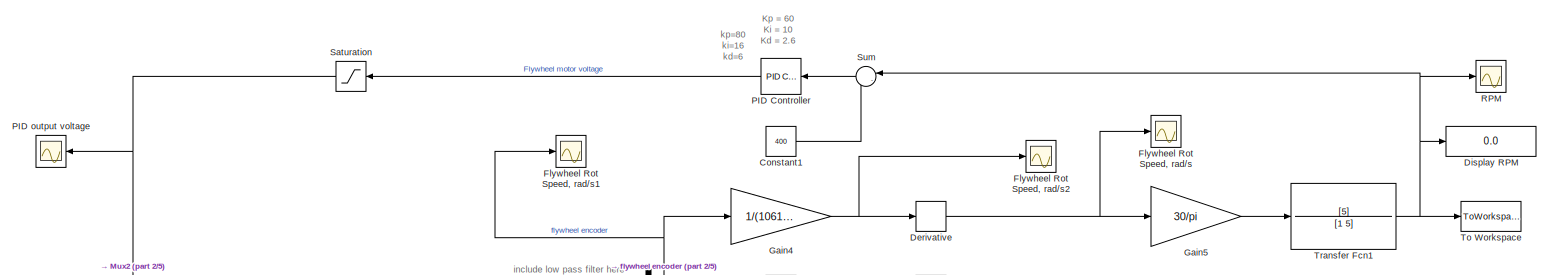
[diagram: root canvas - part 1/5, full width, top band]
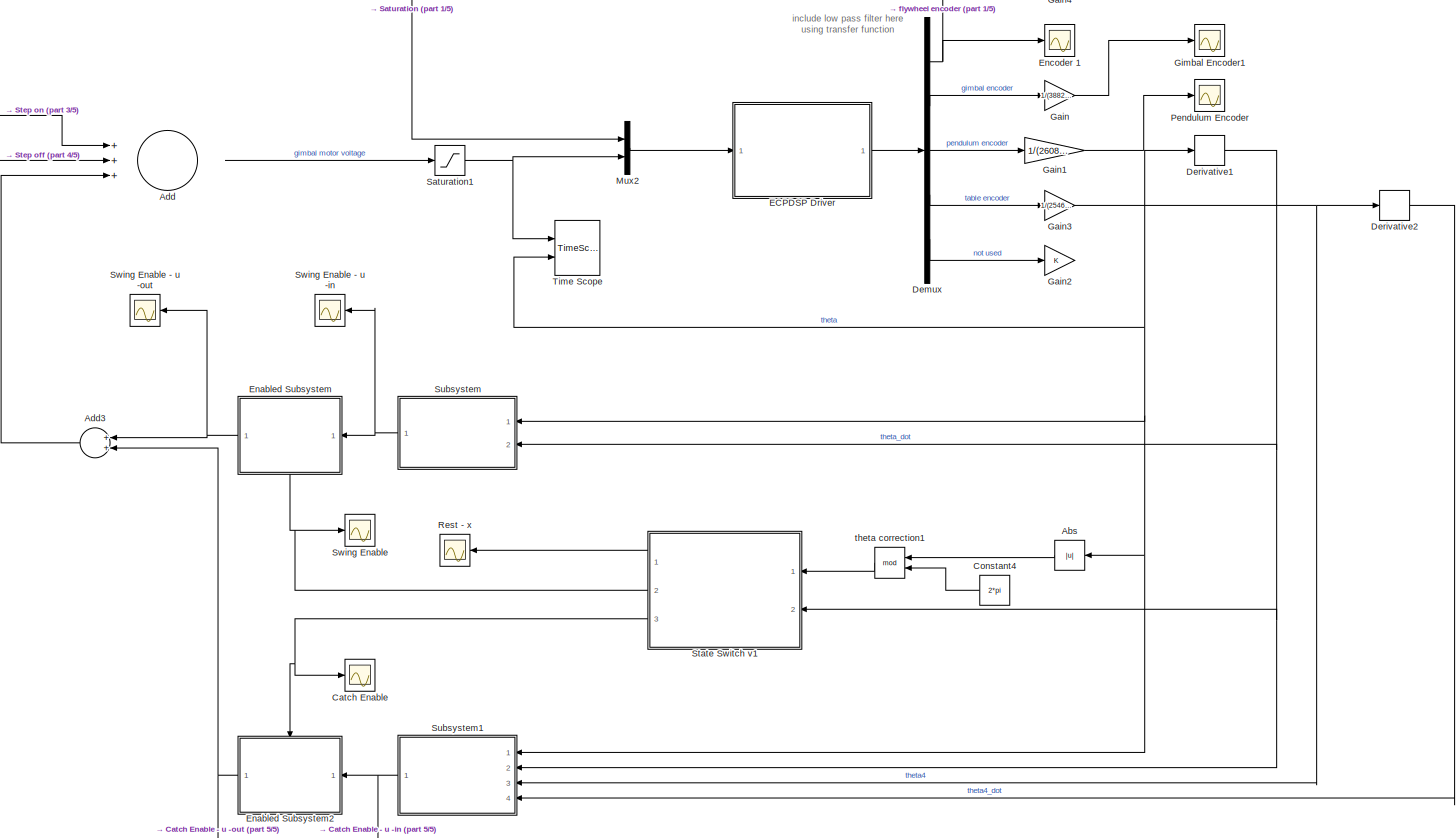
[diagram: root canvas - part 2/5, full width, middle band]
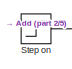
[diagram: root canvas - part 3/5, top left region]
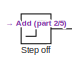
[diagram: root canvas - part 4/5, middle left region]
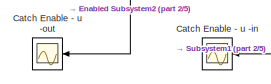
[diagram: root canvas - part 5/5, bottom left region]
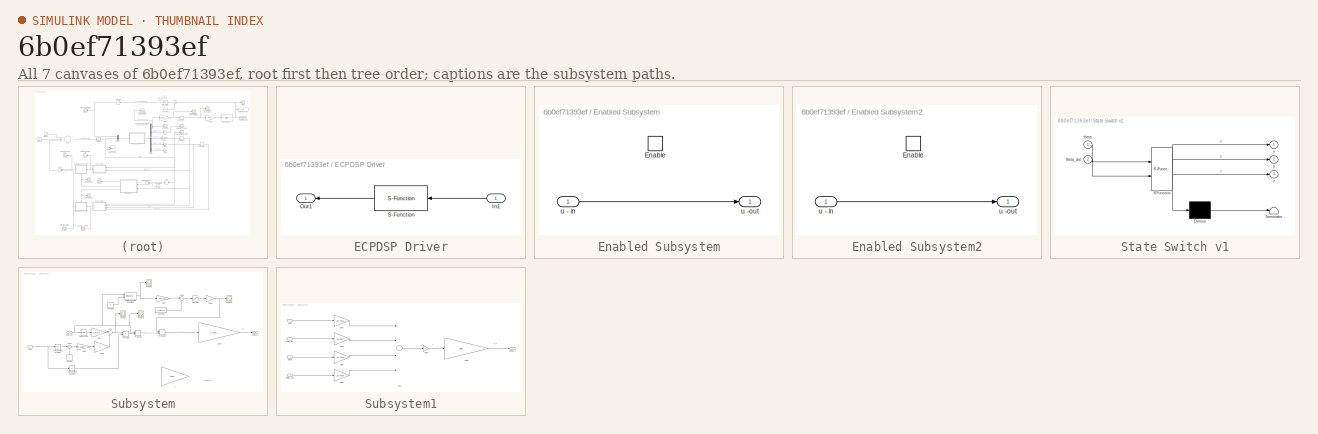
[diagram: thumbnail index - all 7 canvases of the model, root first then tree order]
MODEL slx_6b0ef71393ef
KIND model
BLOCK [Abs] Abs
  SaturateOnIntegerOverflow = off
BLOCK [Sum] Add
  InputSameDT = off
  Inputs = +++
  OutDataTypeStr = Inherit: Inherit via internal rule
  Ports = [3, 1]
  SaturateOnIntegerOverflow = off
BLOCK [Sum] Add3
  InputSameDT = off
  OutDataTypeStr = Inherit: Inherit via internal rule
  Ports = [2, 1]
  SaturateOnIntegerOverflow = off
BLOCK [Scope] Catch Enable
  Floating = off
  NumInputPorts = 1
  Ports = [1]
  SaveName = ScopeData3
  ShowLegends = off
  YMax = 10
  YMin = -10
BLOCK [Scope] Catch Enable - u -in
  Floating = off
  NumInputPorts = 1
  Ports = [1]
  SaveName = ScopeData4
  ShowLegends = off
  YMax = 10
  YMin = -10
BLOCK [Scope] Catch Enable - u -out
  Floating = off
  NumInputPorts = 1
  Ports = [1]
  SaveName = ScopeData5
  ShowLegends = off
  YMax = 10
  YMin = -10
BLOCK [Constant] Constant1
  Value = 400
BLOCK [Constant] Constant4
  Value = 2*pi
BLOCK [Demux] Demux
  Outputs = 5
  Ports = [1, 5]
BLOCK [Derivative] Derivative
BLOCK [Derivative] Derivative1
BLOCK [Derivative] Derivative2
BLOCK [Display] Display RPM
  Decimation = 1
  Lockdown = off
  Ports = [1]
BLOCK [SubSystem] ECPDSP Driver
  FunctionWithSeparateData = off
  MaskHideContents = off
  MinAlgLoopOccurrences = off
  Opaque = off
  Ports = [1, 1]
  PropExecContextOutsideSubsystem = off
  RTWSystemCode = Auto
  RequestExecContextInheritance = off
BLOCK [Inport] ECPDSP Driver/In1
  IconDisplay = Port number
BLOCK [Outport] ECPDSP Driver/Out1
  IconDisplay = Port number
BLOCK [S-Function] ECPDSP Driver/S-Function
  EnableBusSupport = off
  FunctionName = ECPDSPDriver
  Parameters = BaseAddr,STime,TimeOutPer,HWAccess
  Ports = [1, 1]
BLOCK [SubSystem] Enabled Subsystem
  FunctionWithSeparateData = off
  MaskHideContents = off
  MinAlgLoopOccurrences = off
  Opaque = off
  Ports = [1, 1, 1]
  PropExecContextOutsideSubsystem = off
  RTWSystemCode = Auto
  RequestExecContextInheritance = off
  TreatAsAtomicUnit = on
BLOCK [EnablePort] Enabled Subsystem/Enable
  Ports = []
BLOCK [Inport] Enabled Subsystem/u - in
  IconDisplay = Port number
BLOCK [Outport] Enabled Subsystem/u -out
  IconDisplay = Port number
  InitialOutput = [0]
BLOCK [SubSystem] Enabled Subsystem2
  FunctionWithSeparateData = off
  MaskHideContents = off
  MinAlgLoopOccurrences = off
  Opaque = off
  Ports = [1, 1, 1]
  PropExecContextOutsideSubsystem = off
  RTWSystemCode = Auto
  RequestExecContextInheritance = off
  TreatAsAtomicUnit = on
BLOCK [EnablePort] Enabled Subsystem2/Enable
  Ports = []
BLOCK [Inport] Enabled Subsystem2/u - in
  IconDisplay = Port number
BLOCK [Outport] Enabled Subsystem2/u -out
  IconDisplay = Port number
  InitialOutput = [0]
BLOCK [Scope] Encoder 1
  DataFormat = StructureWithTime
  Floating = off
  LimitDataPoints = off
  NumInputPorts = 1
  Ports = [1]
  SaveName = ScopeData12
  ShowLegends = off
  YMax = 8.5e+06
  YMin = 1.5e+06
BLOCK [Scope] Flywheel Rot Speed, rad//s
  DataFormat = StructureWithTime
  Floating = off
  NumInputPorts = 1
  Ports = [1]
  SaveName = ScopeData13
  ShowLegends = off
  YMax = 10
  YMin = -10
BLOCK [Scope] Flywheel Rot Speed, rad//s1
  DataFormat = StructureWithTime
  Floating = off
  NumInputPorts = 1
  Ports = [1]
  SaveName = ScopeData14
  ShowLegends = off
  YMax = 10
  YMin = -10
BLOCK [Scope] Flywheel Rot Speed, rad//s2
  DataFormat = StructureWithTime
  Floating = off
  NumInputPorts = 1
  Ports = [1]
  SaveName = ScopeData15
  ShowLegends = off
  YMax = 10
  YMin = -10
BLOCK [Gain] Gain
  Gain = 1/(3882*32)
  OutDataTypeStr = Inherit: Inherit via internal rule
  ParamDataTypeStr = Inherit: Inherit via internal rule
  SaturateOnIntegerOverflow = off
BLOCK [Gain] Gain1
  Gain = 1/(2608*32)
  OutDataTypeStr = Inherit: Inherit via internal rule
  ParamDataTypeStr = Inherit: Inherit via internal rule
  SaturateOnIntegerOverflow = off
BLOCK [Gain] Gain2
  OutDataTypeStr = Inherit: Inherit via internal rule
  ParamDataTypeStr = Inherit: Inherit via internal rule
  SaturateOnIntegerOverflow = off
BLOCK [Gain] Gain3
  Gain = 1/(2546*32)
  OutDataTypeStr = Inherit: Inherit via internal rule
  ParamDataTypeStr = Inherit: Inherit via internal rule
  SaturateOnIntegerOverflow = off
BLOCK [Gain] Gain4
  Gain = 1/(1061*32)
  OutDataTypeStr = Inherit: Inherit via internal rule
  ParamDataTypeStr = Inherit: Inherit via internal rule
  SaturateOnIntegerOverflow = off
BLOCK [Gain] Gain5
  Gain = 30/pi
  OutDataTypeStr = Inherit: Inherit via internal rule
  ParamDataTypeStr = Inherit: Inherit via internal rule
  SaturateOnIntegerOverflow = off
BLOCK [Scope] Gimbal Encoder1
  DataFormat = StructureWithTime
  Floating = off
  NumInputPorts = 1
  Ports = [1]
  SaveName = ScopeData9
  ShowLegends = off
  YMax = 3.25
  YMin = -0.25
BLOCK [Mux] Mux2
  DisplayOption = bar
  Inputs = 2
  Ports = [2, 1]
BLOCK [Reference] PID Controller  REF=simulink/Continuous/PID Controller
  AntiWindupMode = none
  Controller = PID
  D = 2.6
  DOutDataTypeStr = Inherit: Inherit via internal rule
  DOutMax = []
  DOutMin = []
  DParamDataTypeStr = Inherit: Inherit via internal rule
  DParamMax = []
  DParamMin = []
  ExternalReset = none
  FilterContinuousStateAttributes = ''
  FilterMethod = Forward Euler
  FilterOutDataTypeStr = Inherit: Inherit via internal rule
  FilterOutMax = []
  FilterOutMin = []
  FilterRTWStateStorageClass = Auto
  FilterStateMustResolveToSignalObject = off
  Form = Parallel
  I = 10
  IOutDataTypeStr = Inherit: Inherit via internal rule
  IOutMax = []
  IOutMin = []
  IParamDataTypeStr = Inherit: Inherit via internal rule
  IParamMax = []
  IParamMin = []
  IgnoreLimit = off
  InitialConditionForFilter = 0
  InitialConditionForIntegrator = 0
  InitialConditionSource = internal
  IntegratorContinuousStateAttributes = ''
  IntegratorMethod = Forward Euler
  IntegratorOutDataTypeStr = Inherit: Inherit via internal rule
  IntegratorOutMax = []
  IntegratorOutMin = []
  IntegratorRTWStateStorageClass = Auto
  IntegratorStateMustResolveToSignalObject = off
  Kb = 1
  KbOutDataTypeStr = Inherit: Inherit via internal rule
  KbOutMax = []
  KbOutMin = []
  KbParamDataTypeStr = Inherit: Inherit via internal rule
  KbParamMax = []
  KbParamMin = []
  Kt = 1
  KtOutDataTypeStr = Inherit: Inherit via internal rule
  KtOutMax = []
  KtOutMin = []
  KtParamDataTypeStr = Inherit: Inherit via internal rule
  KtParamMax = []
  KtParamMin = []
  LimitOutput = off
  LinearizeAsGain = on
  LockScale = off
  LowerSaturationLimit = -inf
  N = 100
  NOutDataTypeStr = Inherit: Inherit via internal rule
  NOutMax = []
  NOutMin = []
  NParamDataTypeStr = Inherit: Inherit via internal rule
  NParamMax = []
  NParamMin = []
  P = 60
  POutDataTypeStr = Inherit: Inherit via internal rule
  POutMax = []
  POutMin = []
  PParamDataTypeStr = Inherit: Inherit via internal rule
  PParamMax = []
  PParamMin = []
  Ports = [1, 1]
  RndMeth = Floor
  SampleTime = -1
  SaturateOnIntegerOverflow = off
  SaturationOutDataTypeStr = Inherit: Same as input
  SaturationOutMax = []
  SaturationOutMin = []
  SourceBlock = simulink/Continuous/PID Controller
  SourceType = PID 1dof
  SumAccumDataTypeStr = Inherit: Inherit via internal rule
  SumDAccumDataTypeStr = Inherit: Inherit via internal rule
  SumDOutDataTypeStr = Inherit: Inherit via internal rule
  SumDOutMax = []
  SumDOutMin = []
  SumI1AccumDataTypeStr = Inherit: Inherit via internal rule
  SumI1OutDataTypeStr = Inherit: Inherit via internal rule
  SumI1OutMax = []
  SumI1OutMin = []
  SumI2AccumDataTypeStr = Inherit: Inherit via internal rule
  SumI2OutDataTypeStr = Inherit: Inherit via internal rule
  SumI2OutMax = []
  SumI2OutMin = []
  SumI3AccumDataTypeStr = Inherit: Inherit via internal rule
  SumI3OutDataTypeStr = Inherit: Inherit via internal rule
  SumI3OutMax = []
  SumI3OutMin = []
  SumOutDataTypeStr = Inherit: Inherit via internal rule
  SumOutMax = []
  SumOutMin = []
  TimeDomain = Continuous-time
  TrackingMode = off
  UpperSaturationLimit = inf
  ZeroCross = on
BLOCK [Scope] PID output voltage
  DataFormat = StructureWithTime
  Floating = off
  LimitDataPoints = off
  NumInputPorts = 1
  Ports = [1]
  SaveName = ScopeData6
  ShowLegends = off
  YMax = 421
  YMin = 400
BLOCK [Scope] Pendulum Encoder
  DataFormat = StructureWithTime
  Floating = off
  NumInputPorts = 1
  Ports = [1]
  SaveName = ScopeData16
  ShowLegends = off
  YMax = 3.25
  YMin = -0.25
BLOCK [Scope] RPM
  DataFormat = StructureWithTime
  Floating = off
  LimitDataPoints = off
  NumInputPorts = 1
  Ports = [1]
  SaveName = ScopeData17
  ShowLegends = off
  YMax = 421
  YMin = 400
BLOCK [Scope] Rest - x
  Floating = off
  NumInputPorts = 1
  Ports = [1]
  SaveName = ScopeData19
  ShowLegends = off
  YMax = 10
  YMin = -10
BLOCK [Saturate] Saturation
  InputPortMap = u0
  LowerLimit = -32000
  Ports = [1, 1]
  UpperLimit = 32000
BLOCK [Saturate] Saturation1
  InputPortMap = u0
  LowerLimit = -22000
  Ports = [1, 1]
  UpperLimit = 22000
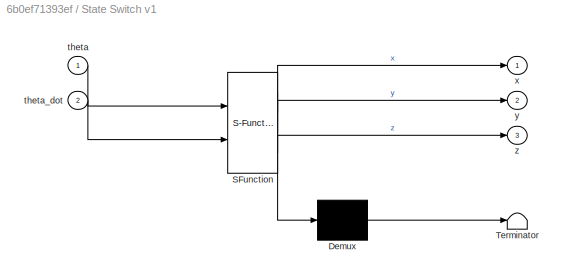
BLOCK [SubSystem] State Switch v1
  ErrorFcn = Stateflow.Translate.translate
  FunctionWithSeparateData = off
  MaskHideContents = off
  MinAlgLoopOccurrences = off
  Opaque = off
  PermitHierarchicalResolution = ExplicitOnly
  Ports = [2, 3]
  PropExecContextOutsideSubsystem = off
  RTWSystemCode = Auto
  RequestExecContextInheritance = off
  SFBlockType = Chart
  TreatAsAtomicUnit = on
BLOCK [Demux] State Switch v1/ Demux 
  Outputs = 1
  Ports = [1, 1]
BLOCK [S-Function] State Switch v1/ SFunction 
  EnableBusSupport = on
  FunctionName = sf_sfun
  PortCounts = [2 4]
  Ports = [2, 4]
  Tag = Stateflow S-Function State_Flow_v0 3
BLOCK [Terminator] State Switch v1/ Terminator 
BLOCK [Inport] State Switch v1/theta
  IconDisplay = Port number
BLOCK [Inport] State Switch v1/theta_dot
  IconDisplay = Port number
  Port = 2
BLOCK [Outport] State Switch v1/x
  IconDisplay = Port number
BLOCK [Outport] State Switch v1/y
  IconDisplay = Port number
  Port = 2
BLOCK [Outport] State Switch v1/z
  IconDisplay = Port number
  Port = 3
BLOCK [Step] Step off
  After = -14000
  SampleTime = 0
  Time = 30.15
BLOCK [Step] Step on
  After = 14000
  SampleTime = 0
  Time = 30
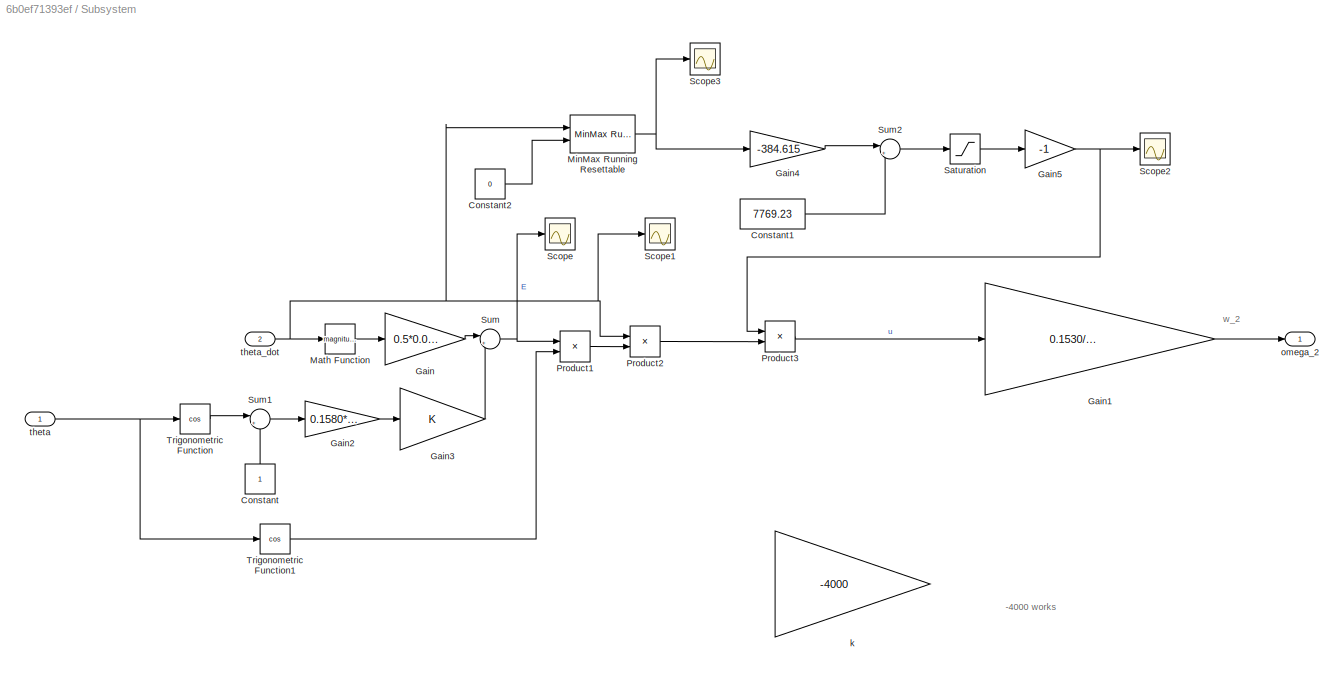
BLOCK [SubSystem] Subsystem
  FunctionWithSeparateData = off
  MaskHideContents = off
  MinAlgLoopOccurrences = off
  Opaque = off
  Ports = [2, 1]
  PropExecContextOutsideSubsystem = off
  RTWSystemCode = Auto
  RequestExecContextInheritance = off
BLOCK [Constant] Subsystem/Constant
BLOCK [Constant] Subsystem/Constant1
  Value = 7769.23
BLOCK [Constant] Subsystem/Constant2
  Value = 0
BLOCK [Gain] Subsystem/Gain
  Gain = 0.5*0.0131
  OutDataTypeStr = Inherit: Inherit via internal rule
  ParamDataTypeStr = Inherit: Inherit via internal rule
  SaturateOnIntegerOverflow = off
BLOCK [Gain] Subsystem/Gain1
  Gain = 0.1530/(41.8879*0.0273*0.37)
  OutDataTypeStr = Inherit: Inherit via internal rule
  ParamDataTypeStr = Inherit: Inherit via internal rule
  SaturateOnIntegerOverflow = off
BLOCK [Gain] Subsystem/Gain2
  Gain = 0.1580*9.81*0.2698
  OutDataTypeStr = Inherit: Inherit via internal rule
  ParamDataTypeStr = Inherit: Inherit via internal rule
  SaturateOnIntegerOverflow = off
BLOCK [Gain] Subsystem/Gain3
  OutDataTypeStr = Inherit: Inherit via internal rule
  ParamDataTypeStr = Inherit: Inherit via internal rule
  SaturateOnIntegerOverflow = off
BLOCK [Gain] Subsystem/Gain4
  Gain = -384.615
  OutDataTypeStr = Inherit: Inherit via internal rule
  ParamDataTypeStr = Inherit: Inherit via internal rule
  SaturateOnIntegerOverflow = off
BLOCK [Gain] Subsystem/Gain5
  Gain = -1
  OutDataTypeStr = Inherit: Inherit via internal rule
  ParamDataTypeStr = Inherit: Inherit via internal rule
  SaturateOnIntegerOverflow = off
BLOCK [Math] Subsystem/Math Function
  Operator = magnitude^2
  Ports = [1, 1]
BLOCK [Reference] Subsystem/MinMax Running Resettable  REF=simulink/Math
Operations/MinMax
Running
Resettable
  Function = max
  Ports = [2, 1]
  SourceBlock = simulink/Math\nOperations/MinMax\nRunning\nResettable
  SourceType = MinMax Running Resettable
  vinit = 0.0
BLOCK [Product] Subsystem/Product1
  InputSameDT = off
  OutDataTypeStr = Inherit: Inherit via internal rule
  Ports = [2, 1]
  RndMeth = Floor
  SaturateOnIntegerOverflow = off
BLOCK [Product] Subsystem/Product2
  InputSameDT = off
  OutDataTypeStr = Inherit: Inherit via internal rule
  Ports = [2, 1]
  RndMeth = Floor
  SaturateOnIntegerOverflow = off
BLOCK [Product] Subsystem/Product3
  InputSameDT = off
  OutDataTypeStr = Inherit: Inherit via internal rule
  Ports = [2, 1]
  RndMeth = Floor
  SaturateOnIntegerOverflow = off
BLOCK [Saturate] Subsystem/Saturation
  InputPortMap = u0
  LowerLimit = 2000
  Ports = [1, 1]
  UpperLimit = 7000
BLOCK [Scope] Subsystem/Scope
  DataFormat = StructureWithTime
  Floating = off
  NumInputPorts = 1
  Ports = [1]
  SaveName = ScopeData7
  ShowLegends = off
  YMax = 10
  YMin = -10
BLOCK [Scope] Subsystem/Scope1
  DataFormat = StructureWithTime
  Floating = off
  LimitDataPoints = off
  NumInputPorts = 1
  Ports = [1]
  SaveName = ScopeData8
  ShowLegends = off
  YMax = 10
  YMin = -10
BLOCK [Scope] Subsystem/Scope2
  DataFormat = StructureWithTime
  Floating = off
  LimitDataPoints = off
  NumInputPorts = 1
  Ports = [1]
  SaveName = ScopeData10
  ShowLegends = off
  YMax = 10
  YMin = -10
BLOCK [Scope] Subsystem/Scope3
  DataFormat = StructureWithTime
  Floating = off
  NumInputPorts = 1
  Ports = [1]
  SaveName = ScopeData11
  ShowLegends = off
  YMax = 10
  YMin = -10
BLOCK [Sum] Subsystem/Sum
  IconShape = round
  InputSameDT = off
  Inputs = |++
  OutDataTypeStr = Inherit: Inherit via internal rule
  Ports = [2, 1]
  SaturateOnIntegerOverflow = off
BLOCK [Sum] Subsystem/Sum1
  IconShape = round
  InputSameDT = off
  Inputs = |++
  OutDataTypeStr = Inherit: Inherit via internal rule
  Ports = [2, 1]
  SaturateOnIntegerOverflow = off
BLOCK [Sum] Subsystem/Sum2
  IconShape = round
  InputSameDT = off
  Inputs = |++
  OutDataTypeStr = Inherit: Inherit via internal rule
  Ports = [2, 1]
  SaturateOnIntegerOverflow = off
BLOCK [Trigonometry] Subsystem/Trigonometric Function
  Operator = cos
  Ports = [1, 1]
BLOCK [Trigonometry] Subsystem/Trigonometric Function1
  Operator = cos
  Ports = [1, 1]
BLOCK [Gain] Subsystem/k
  Commented = on
  Gain = -4000
  OutDataTypeStr = Inherit: Inherit via internal rule
  ParamDataTypeStr = Inherit: Inherit via internal rule
  SaturateOnIntegerOverflow = off
BLOCK [Outport] Subsystem/omega_2
  IconDisplay = Port number
BLOCK [Inport] Subsystem/theta
  IconDisplay = Port number
BLOCK [Inport] Subsystem/theta_dot
  IconDisplay = Port number
  Port = 2
BLOCK [SubSystem] Subsystem1
  FunctionWithSeparateData = off
  MaskHideContents = off
  MinAlgLoopOccurrences = off
  Opaque = off
  Ports = [4, 1]
  PropExecContextOutsideSubsystem = off
  RTWSystemCode = Auto
  RequestExecContextInheritance = off
BLOCK [Sum] Subsystem1/Add
  InputSameDT = off
  Inputs = ++++
  OutDataTypeStr = Inherit: Inherit via internal rule
  Ports = [4, 1]
  SaturateOnIntegerOverflow = off
BLOCK [Gain] Subsystem1/Gain
  Gain = -18.7746
  OutDataTypeStr = Inherit: Inherit via internal rule
  ParamDataTypeStr = Inherit: Inherit via internal rule
  SaturateOnIntegerOverflow = off
BLOCK [Gain] Subsystem1/Gain1
  Gain = -15.5039
  OutDataTypeStr = Inherit: Inherit via internal rule
  ParamDataTypeStr = Inherit: Inherit via internal rule
  SaturateOnIntegerOverflow = off
BLOCK [Gain] Subsystem1/Gain2
  Gain = -92.7915
  OutDataTypeStr = Inherit: Inherit via internal rule
  ParamDataTypeStr = Inherit: Inherit via internal rule
  SaturateOnIntegerOverflow = off
BLOCK [Gain] Subsystem1/Gain3
  Gain = -16.9657
  OutDataTypeStr = Inherit: Inherit via internal rule
  ParamDataTypeStr = Inherit: Inherit via internal rule
  SaturateOnIntegerOverflow = off
BLOCK [Gain] Subsystem1/Gain4
  Gain = -1
  OutDataTypeStr = Inherit: Inherit via internal rule
  ParamDataTypeStr = Inherit: Inherit via internal rule
  SaturateOnIntegerOverflow = off
BLOCK [Gain] Subsystem1/Gain5
  Gain = 1500
  OutDataTypeStr = Inherit: Inherit via internal rule
  ParamDataTypeStr = Inherit: Inherit via internal rule
  SaturateOnIntegerOverflow = off
BLOCK [Outport] Subsystem1/omega_2
  IconDisplay = Port number
BLOCK [Inport] Subsystem1/theta
  IconDisplay = Port number
BLOCK [Inport] Subsystem1/theta4
  IconDisplay = Port number
  Port = 3
BLOCK [Inport] Subsystem1/theta4_dot
  IconDisplay = Port number
  Port = 4
BLOCK [Inport] Subsystem1/theta_dot
  IconDisplay = Port number
  Port = 2
BLOCK [Sum] Sum
  IconShape = round
  InputSameDT = off
  Inputs = |-+
  OutDataTypeStr = Inherit: Inherit via internal rule
  Ports = [2, 1]
  SaturateOnIntegerOverflow = off
BLOCK [Scope] Swing Enable
  Floating = off
  NumInputPorts = 1
  Ports = [1]
  SaveName = ScopeData2
  ShowLegends = off
  YMax = 10
  YMin = -10
BLOCK [Scope] Swing Enable - u -in
  Floating = off
  NumInputPorts = 1
  Ports = [1]
  SaveName = ScopeData1
  ShowLegends = off
  YMax = 10
  YMin = -10
BLOCK [Scope] Swing Enable - u -out
  Floating = off
  NumInputPorts = 1
  Ports = [1]
  ShowLegends = off
  YMax = 10
  YMin = -10
BLOCK [TimeScope] Time Scope
  CloseFcn = scopeextensions.ScopeBlock.callback(gcbh, 'onBlockClose');
  CopyFcn = scopeextensions.ScopeBlock.callback(gcbh, 'onBlockCopy', gcbh);
  DefaultConfigurationName = spbscopes.TimeScopeBlockCfg
  DeleteFcn = scopeextensions.ScopeBlock.callback(gcbh, 'onBlockDelete');
  NameChangeFcn = scopeextensions.ScopeBlock.callback(gcbh, 'onBlockRename');
  NumInputPorts = 2
  Ports = [2]
  PreDeleteFcn = scopeextensions.ScopeBlock.callback(gcbh, 'onBlockPreDelete');
  PreSaveFcn = scopeextensions.ScopeBlock.callback(gcbh, 'onModelSave');
  UserDataPersistent = on
BLOCK [ToWorkspace] To Workspace
  MaxDataPoints = inf
  Ports = [1]
  SampleTime = -1
  SaveFormat = Timeseries
  VariableName = rpm_data
BLOCK [TransferFcn] Transfer Fcn1
  Denominator = [1 5]
  Numerator = [5]
BLOCK [Math] theta correction1
  Operator = mod
  Ports = [2, 1]
ANNOTATION (root): Kp = 60 Ki = 10 Kd = 2.6
ANNOTATION (root): include low pass filter here using transfer function
ANNOTATION (root): kp=80 ki=16 kd=6
ANNOTATION Subsystem: -4000 works
ANNOTATION Subsystem: w_2
ANNOTATION Subsystem1: u
ANNOTATION Subsystem1: w_2
LINE Abs:1 -> theta correction1:1
LINE Add3:1 -> Add:3
LINE Add:1 -> Saturation1:1
LINE Constant1:1 -> Sum:2
LINE Constant4:1 -> theta correction1:2
NET Demux:1 -> Encoder 1:1, Flywheel Rot Speed, rad//s1:1, Gain4:1
LINE Demux:2 -> Gain:1
LINE Demux:3 -> Gain1:1
LINE Demux:4 -> Gain3:1
LINE Demux:5 -> Gain2:1
NET Derivative1:1 -> State Switch v1:2, Subsystem1:2, Subsystem:2
LINE Derivative2:1 -> Subsystem1:4
NET Derivative:1 -> Flywheel Rot Speed, rad//s:1, Gain5:1
LINE ECPDSP Driver/In1:1 -> ECPDSP Driver/S-Function:1
LINE ECPDSP Driver/S-Function:1 -> ECPDSP Driver/Out1:1
LINE ECPDSP Driver:1 -> Demux:1
LINE Enabled Subsystem/u - in:1 -> Enabled Subsystem/u -out:1
LINE Enabled Subsystem2/u - in:1 -> Enabled Subsystem2/u -out:1
NET Enabled Subsystem2:1 -> Add3:2, Catch Enable - u -out:1
NET Enabled Subsystem:1 -> Add3:1, Swing Enable - u -out:1
NET Gain1:1 -> Abs:1, Derivative1:1, Pendulum Encoder:1, Subsystem1:1, Subsystem:1, Time Scope:2
NET Gain3:1 -> Derivative2:1, Subsystem1:3
NET Gain4:1 -> Derivative:1, Flywheel Rot Speed, rad//s2:1
LINE Gain5:1 -> Transfer Fcn1:1
LINE Gain:1 -> Gimbal Encoder1:1
LINE Mux2:1 -> ECPDSP Driver:1
LINE PID Controller:1 -> Saturation:1
NET Saturation1:1 -> Mux2:2, Time Scope:1
NET Saturation:1 -> Mux2:1, PID output voltage:1
LINE State Switch v1:1 -> Rest - x:1
NET State Switch v1:2 -> Enabled Subsystem:enable, Swing Enable:1
NET State Switch v1:3 -> Catch Enable:1, Enabled Subsystem2:enable
LINE Step off:1 -> Add:2
LINE Step on:1 -> Add:1
LINE Subsystem/Constant1:1 -> Subsystem/Sum2:2
LINE Subsystem/Constant2:1 -> Subsystem/MinMax Running Resettable:2
LINE Subsystem/Constant:1 -> Subsystem/Sum1:2
LINE Subsystem/Gain1:1 -> Subsystem/omega_2:1
LINE Subsystem/Gain2:1 -> Subsystem/Gain3:1
LINE Subsystem/Gain3:1 -> Subsystem/Sum:2
LINE Subsystem/Gain4:1 -> Subsystem/Sum2:1
NET Subsystem/Gain5:1 -> Subsystem/Product3:1, Subsystem/Scope2:1
LINE Subsystem/Gain:1 -> Subsystem/Sum:1
LINE Subsystem/Math Function:1 -> Subsystem/Gain:1
NET Subsystem/MinMax Running Resettable:1 -> Subsystem/Gain4:1, Subsystem/Scope3:1
LINE Subsystem/Product1:1 -> Subsystem/Product2:2
LINE Subsystem/Product2:1 -> Subsystem/Product3:2
LINE Subsystem/Product3:1 -> Subsystem/Gain1:1
LINE Subsystem/Saturation:1 -> Subsystem/Gain5:1
LINE Subsystem/Sum1:1 -> Subsystem/Gain2:1
LINE Subsystem/Sum2:1 -> Subsystem/Saturation:1
NET Subsystem/Sum:1 -> Subsystem/Product1:1, Subsystem/Scope:1
LINE Subsystem/Trigonometric Function1:1 -> Subsystem/Product1:2
LINE Subsystem/Trigonometric Function:1 -> Subsystem/Sum1:1
NET Subsystem/theta:1 -> Subsystem/Trigonometric Function1:1, Subsystem/Trigonometric Function:1
NET Subsystem/theta_dot:1 -> Subsystem/Math Function:1, Subsystem/MinMax Running Resettable:1, Subsystem/Product2:1, Subsystem/Scope1:1
LINE Subsystem1/Add:1 -> Subsystem1/Gain4:1
LINE Subsystem1/Gain1:1 -> Subsystem1/Add:4
LINE Subsystem1/Gain2:1 -> Subsystem1/Add:1
LINE Subsystem1/Gain3:1 -> Subsystem1/Add:2
LINE Subsystem1/Gain4:1 -> Subsystem1/Gain5:1
LINE Subsystem1/Gain5:1 -> Subsystem1/omega_2:1
LINE Subsystem1/Gain:1 -> Subsystem1/Add:3
LINE Subsystem1/theta4:1 -> Subsystem1/Gain:1
LINE Subsystem1/theta4_dot:1 -> Subsystem1/Gain1:1
LINE Subsystem1/theta:1 -> Subsystem1/Gain2:1
LINE Subsystem1/theta_dot:1 -> Subsystem1/Gain3:1
NET Subsystem1:1 -> Catch Enable - u -in:1, Enabled Subsystem2:1
NET Subsystem:1 -> Enabled Subsystem:1, Swing Enable - u -in:1
LINE Sum:1 -> PID Controller:1
NET Transfer Fcn1:1 -> Display RPM:1, RPM:1, Sum:1, To Workspace:1
LINE theta correction1:1 -> State Switch v1:1
note: NET lines group one-source signal fan-out (src -> all destinations, sorted); 1:1 wires keep LINE
